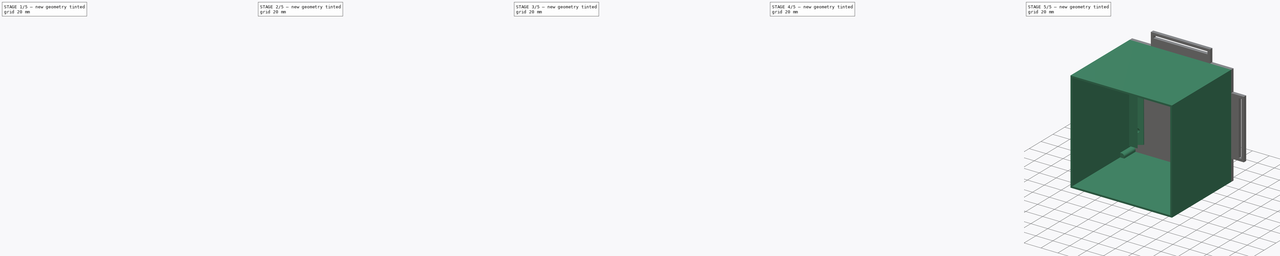
[diagram: build sequence overview — one tinted view per stage of 5, left to right]
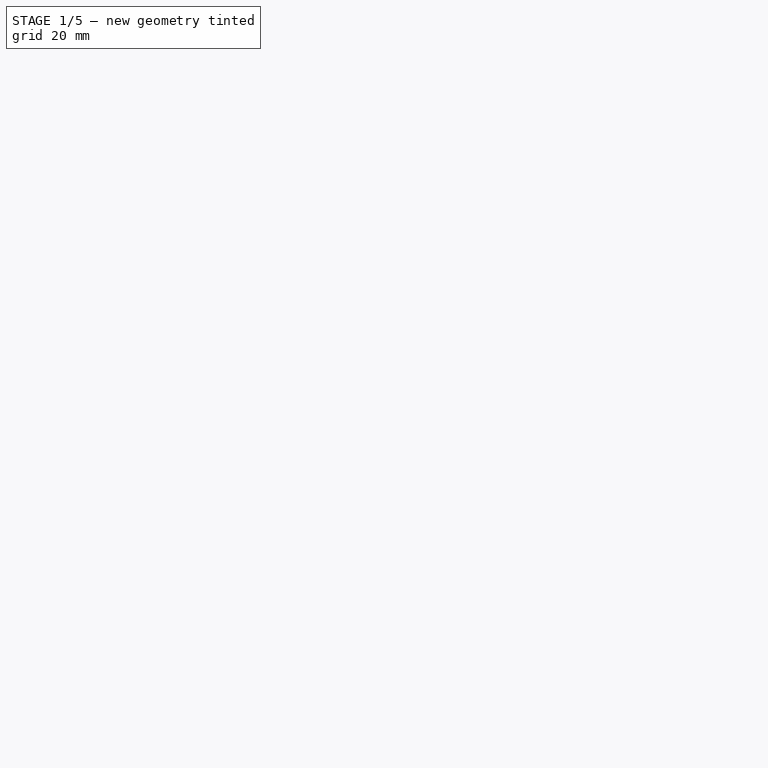
[diagram: stage 1 of 5 — iso view after this stage's code; geometry added in this stage tinted green]
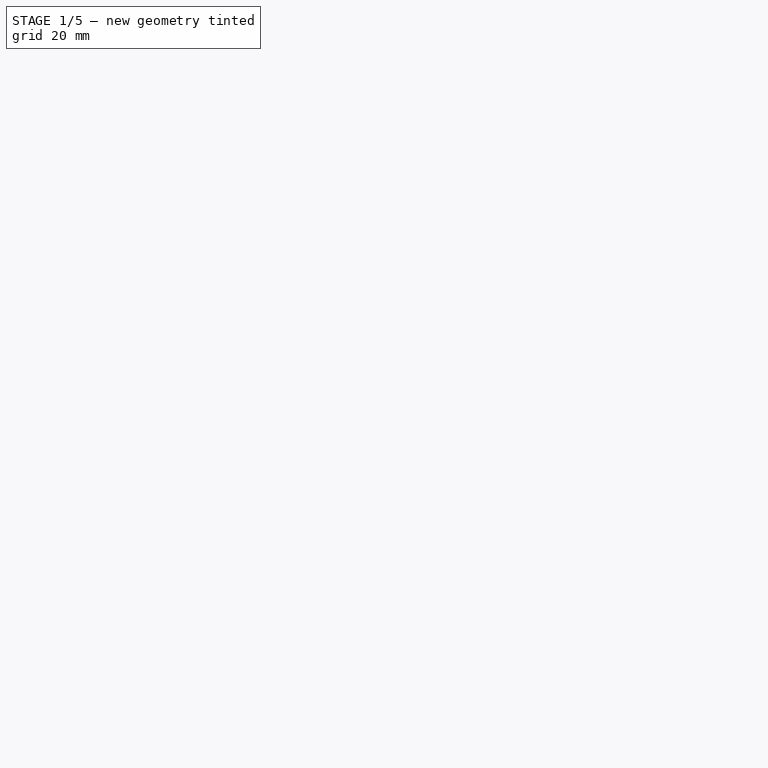
[diagram: stage 1 of 5 — front view after this stage's code; geometry added in this stage tinted green]
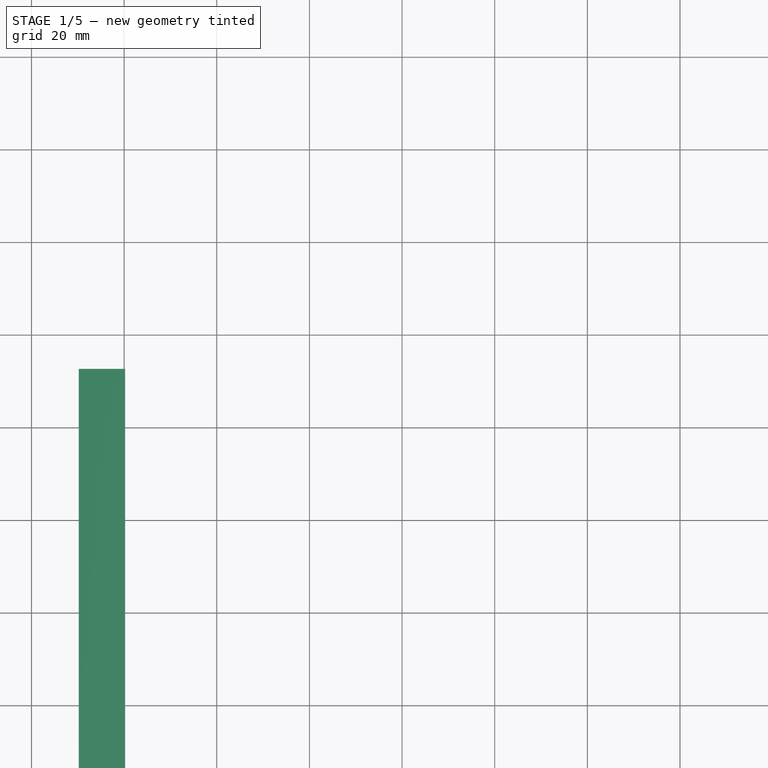
[diagram: stage 1 of 5 — top view after this stage's code; geometry added in this stage tinted green]
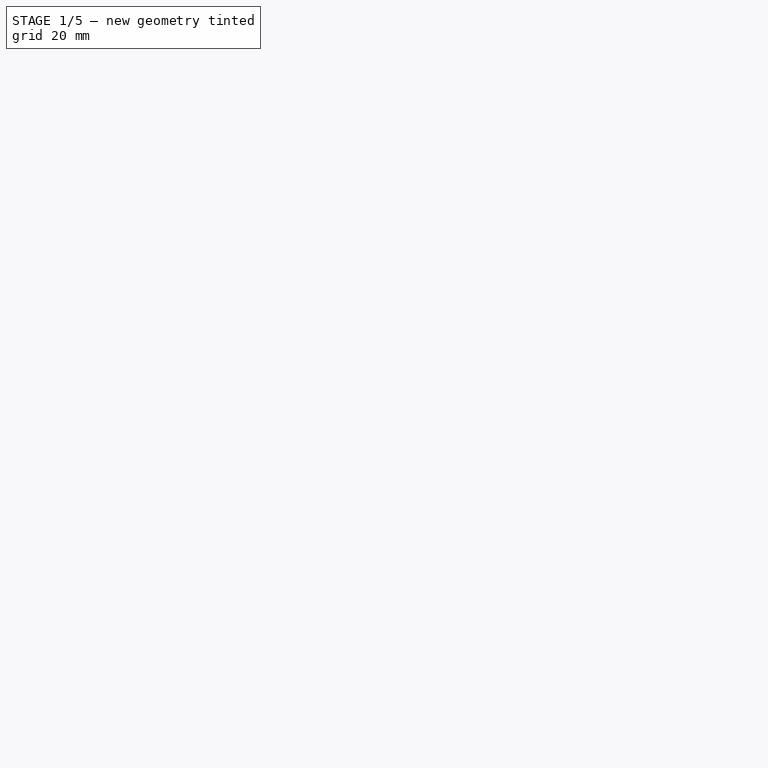
[diagram: stage 1 of 5 — right view after this stage's code; geometry added in this stage tinted green]
FCSTD DOCUMENT  (FreeCAD 0.18R16146 (Git))
Label: BaseIntento2
License: All rights reserved
LicenseURL: http://en.wikipedia.org/wiki/All_rights_reserved
objects: Part::Box×10, Sketcher::SketchObject×9, Part::FeaturePython×8, Part::Cylinder×8, Part::Cut×8, Part::Extrusion×4, Part::MultiFuse×2, PartDesign::FeatureBase×2, PartDesign::Pocket×2, PartDesign::Body×2, Part::Chamfer×2, Part::Compound×1, App::DocumentObjectGroup×1
note: 60 computed .brp shape members not serialized (recipe doc carries the construction recipe); baked Part::Feature solids carry a one-line shape summary decoded from their .brp

FEATURE [Part::Box] Box008  label="Cube008"
  AttacherType = Attacher::AttachEngine3D
  Height = 4
  Length = 70
  Placement = pos=(72,101,-708) rot=(1,0,0;1.5708rad)
  Width = 15
FEATURE [Part::Box] Box009  label="Cube009"
  AttacherType = Attacher::AttachEngine3D
  Height = 4
  Length = 64
  Placement = pos=(75,101,-699) rot=(1,0,0;1.5708rad)
  Width = 3.2
FEATURE [Part::Cut] Cut007
  Base = -> Box008
  Tool = -> Box009
FEATURE [Sketcher::SketchObject] Sketch007
  Placement = pos=(0,0,0) rot=(1,0,0;1.5708rad)
  sketch-geometry (8):
    g0: LineSegment StartX=0 StartY=0 StartZ=0 EndX=0 EndY=15 EndZ=0
    g1: LineSegment StartX=0 StartY=0 StartZ=0 EndX=10.2 EndY=0 EndZ=0
    g2: LineSegment StartX=0 StartY=15 StartZ=0 EndX=10.2 EndY=15 EndZ=0
    g3: LineSegment StartX=10.2 StartY=0 StartZ=0 EndX=17.3407 EndY=5 EndZ=0
    g4: LineSegment [constr] StartX=0 StartY=10 StartZ=0 EndX=10.2 EndY=10 EndZ=0
    g5: LineSegment [constr] StartX=10.2 StartY=10 StartZ=0 EndX=10.2 EndY=15 EndZ=0
    g6: LineSegment StartX=10.2 StartY=10 StartZ=0 EndX=17.3407 EndY=5 EndZ=0
    g7: LineSegment StartX=10.2 StartY=15 StartZ=0 EndX=10.2 EndY=10 EndZ=0
  constraints (21):
    c: Coincident(g0,g-1)
    c: Vertical(g0)
    c: DistanceY(g0,g0) = 15
    c: Horizontal(g1)
    c: DistanceX(g0,g1) = 10.2
    c: Coincident(g2,g0)
    c: Horizontal(g2)
    c: DistanceX(g0,g2) = 10.2
    c: Coincident(g3,g1)
    c: Angle(g3,g1) = 2.53073
    c: Coincident(g1,g0)
    c: Coincident(g5,g4)
    c: Coincident(g5,g2)
    c: Vertical(g5)
    c: Coincident(g6,g4)
    c: Coincident(g6,g3)
    c: DistanceY(g6,g2) = 5
    c: Angle(g4,g6) = 2.53073
    c: Perpendicular(g4,g0) = 1.5708
    c: Coincident(g7,g2)
    c: Coincident(g7,g6)
FEATURE [Sketcher::SketchObject] Sketch012
  MapMode = 5
  Placement = pos=(0,0,0) rot=(0,0.707107,0.707107;3.14159rad)
  sketch-geometry (6):
    g0: LineSegment StartX=-10.2 StartY=10 StartZ=0 EndX=-20.2 EndY=10 EndZ=0
    g1: LineSegment StartX=-20.2 StartY=-1 StartZ=0 EndX=-10.2 EndY=-1 EndZ=0
    g2: LineSegment StartX=-20.2 StartY=10 StartZ=0 EndX=-20.2 EndY=-1 EndZ=0
    g3: LineSegment StartX=-17.3407 StartY=5 StartZ=0 EndX=-10.2 EndY=10 EndZ=0
    g4: LineSegment StartX=-17.3407 StartY=5 StartZ=0 EndX=-10.2 EndY=0 EndZ=0
    g5: LineSegment StartX=-10.2 StartY=0 StartZ=0 EndX=-10.2 EndY=-1 EndZ=0
  constraints (12):
    c: Horizontal(g0)
    c: DistanceX(g0,g0) = 10
    c: Horizontal(g1)
    c: Coincident(g2,g0)
    c: Coincident(g2,g1)
    c: Vertical(g2)
    c: DistanceY(g1,g0) = 11
    c: Coincident(g3,g0)
    c: Coincident(g4,g3)
    c: Coincident(g5,g4)
    c: Coincident(g5,g1)
    c: Vertical(g5)
FEATURE [Part::Extrusion] Extrude006
  Base = -> Sketch012
  Dir = (0,1,-2e-16)
  DirMode = 2
  FaceMakerClass = Part::FaceMakerBullseye
  LengthFwd = 95
  LengthRev = 0
  Placement = pos=(11,0,0) rot=(0,0,1;0rad)
  Reversed = true
  Solid = true
  Symmetric = false
FEATURE [PartDesign::FeatureBase] BaseFeature002
  BaseFeature = -> Extrude006
FEATURE [Sketcher::SketchObject] Sketch013
  ExternalGeometry = -> [BaseFeature002]
  MapMode = 5
  Placement = pos=(20.2,0,0) rot=(0.57735,0.57735,0.57735;2.0944rad)
  Support = -> [BaseFeature002]
  sketch-geometry (7):
    g0: LineSegment [constr] StartX=-84.8 StartY=10 StartZ=0 EndX=-84.8 EndY=0 EndZ=0
    g1: LineSegment [constr] StartX=-84.8 StartY=10 StartZ=0 EndX=-74.8 EndY=10 EndZ=0
    g2: LineSegment [constr] StartX=-74.8 StartY=10 StartZ=0 EndX=-74.8 EndY=0 EndZ=0
    g3: LineSegment [constr] StartX=-84.8 StartY=0 StartZ=0 EndX=-74.8 EndY=0 EndZ=0
    g4: LineSegment [constr] StartX=-84.8 StartY=10 StartZ=0 EndX=-74.8 EndY=0 EndZ=0
    g5: LineSegment [constr] StartX=-74.8 StartY=10 StartZ=0 EndX=-84.8 EndY=0 EndZ=0
    g6: Circle CenterX=-79.8 CenterY=5 CenterZ=0 NormalX=0 NormalY=0 NormalZ=1 AngleXU=0 Radius=3
  constraints (19):
    c: PointOnObject(g0,g-5)
    c: PointOnObject(g0,g-1)
    c: Vertical(g0)
    c: DistanceX(g-5,g0) = 10.2
    c: Coincident(g1,g0)
    c: PointOnObject(g1,g-5)
    c: Coincident(g2,g1)
    c: PointOnObject(g2,g-1)
    c: Vertical(g2)
    c: Coincident(g3,g0)
    c: Coincident(g3,g2)
    c: DistanceX(g1,g1) = 10
    c: Coincident(g4,g0)
    c: Coincident(g4,g2)
    c: Coincident(g5,g1)
    c: Coincident(g5,g0)
    c: PointOnObject(g6,g4)
    c: PointOnObject(g6,g5)
    c: Radius(g6) = 3
FEATURE [PartDesign::Pocket] Pocket006
  BaseFeature = -> BaseFeature002
  Length = 10
  Length2 = 100
  Profile = -> Sketch013
  Type = 0
FEATURE [PartDesign::Body] Body002  label="RailPlacaDerecha"
  BaseFeature = -> Extrude006
  Group = -> [BaseFeature002,Sketch013,Pocket006]
  Origin = -> Origin002
  Placement = pos=(139.7,96,-720.5) rot=(-1,0,0;4.71239rad)
  Tip = -> Pocket006
FEATURE [Sketcher::SketchObject] Sketch017
  MapMode = 5
  Placement = pos=(0,0,0) rot=(0,0.707107,0.707107;3.14159rad)
  sketch-geometry (6):
    g0: LineSegment StartX=-10.2 StartY=10 StartZ=0 EndX=-20.2 EndY=10 EndZ=0
    g1: LineSegment StartX=-20.2 StartY=-1 StartZ=0 EndX=-10.2 EndY=-1 EndZ=0
    g2: LineSegment StartX=-20.2 StartY=10 StartZ=0 EndX=-20.2 EndY=-1 EndZ=0
    g3: LineSegment StartX=-17.3407 StartY=5 StartZ=0 EndX=-10.2 EndY=10 EndZ=0
    g4: LineSegment StartX=-17.3407 StartY=5 StartZ=0 EndX=-10.2 EndY=0 EndZ=0
    g5: LineSegment StartX=-10.2 StartY=0 StartZ=0 EndX=-10.2 EndY=-1 EndZ=0
  constraints (12):
    c: Horizontal(g0)
    c: DistanceX(g0,g0) = 10
    c: Horizontal(g1)
    c: Coincident(g2,g0)
    c: Coincident(g2,g1)
    c: Vertical(g2)
    c: DistanceY(g1,g0) = 11
    c: Coincident(g3,g0)
    c: Coincident(g4,g3)
    c: Coincident(g5,g4)
    c: Coincident(g5,g1)
    c: Vertical(g5)
FEATURE [Sketcher::SketchObject] Sketch014
  Placement = pos=(0,0,0) rot=(1,0,0;1.5708rad)
  sketch-geometry (8):
    g0: LineSegment StartX=0 StartY=0 StartZ=0 EndX=0 EndY=15 EndZ=0
    g1: LineSegment StartX=0 StartY=0 StartZ=0 EndX=10.2 EndY=0 EndZ=0
    g2: LineSegment StartX=0 StartY=15 StartZ=0 EndX=10.2 EndY=15 EndZ=0
    g3: LineSegment StartX=10.2 StartY=0 StartZ=0 EndX=17.3407 EndY=5 EndZ=0
    g4: LineSegment [constr] StartX=0 StartY=10 StartZ=0 EndX=10.2 EndY=10 EndZ=0
    g5: LineSegment [constr] StartX=10.2 StartY=10 StartZ=0 EndX=10.2 EndY=15 EndZ=0
    g6: LineSegment StartX=10.2 StartY=10 StartZ=0 EndX=17.3407 EndY=5 EndZ=0
    g7: LineSegment StartX=10.2 StartY=15 StartZ=0 EndX=10.2 EndY=10 EndZ=0
  constraints (21):
    c: Coincident(g0,g-1)
    c: Vertical(g0)
    c: DistanceY(g0,g0) = 15
    c: Horizontal(g1)
    c: DistanceX(g0,g1) = 10.2
    c: Coincident(g2,g0)
    c: Horizontal(g2)
    c: DistanceX(g0,g2) = 10.2
    c: Coincident(g3,g1)
    c: Angle(g3,g1) = 2.53073
    c: Coincident(g1,g0)
    c: Coincident(g5,g4)
    c: Coincident(g5,g2)
    c: Vertical(g5)
    c: Coincident(g6,g4)
    c: Coincident(g6,g3)
    c: DistanceY(g6,g2) = 5
    c: Angle(g4,g6) = 2.53073
    c: Perpendicular(g4,g0) = 1.5708
    c: Coincident(g7,g2)
    c: Coincident(g7,g6)
FEATURE [Part::Extrusion] Extrude008
  Base = -> Sketch017
  Dir = (0,1,-2e-16)
  DirMode = 2
  FaceMakerClass = Part::FaceMakerBullseye
  LengthFwd = 95
  LengthRev = 0
  Placement = pos=(11,0,0) rot=(0,0,1;0rad)
  Reversed = true
  Solid = true
  Symmetric = false
FEATURE [PartDesign::FeatureBase] BaseFeature003
  BaseFeature = -> Extrude008
FEATURE [Sketcher::SketchObject] Sketch018
  ExternalGeometry = -> [BaseFeature003]
  MapMode = 5
  Placement = pos=(20.2,0,0) rot=(0.57735,0.57735,0.57735;2.0944rad)
  Support = -> [BaseFeature003]
  sketch-geometry (7):
    g0: LineSegment [constr] StartX=-20.2 StartY=10 StartZ=0 EndX=-20.2 EndY=0 EndZ=0
    g1: LineSegment [constr] StartX=-20.2 StartY=10 StartZ=0 EndX=-10.2 EndY=10 EndZ=0
    g2: LineSegment [constr] StartX=-10.2 StartY=10 StartZ=0 EndX=-10.2 EndY=0 EndZ=0
    g3: LineSegment [constr] StartX=-10.2 StartY=0 StartZ=0 EndX=-20.2 EndY=0 EndZ=0
    g4: LineSegment [constr] StartX=-20.2 StartY=10 StartZ=0 EndX=-10.2 EndY=0 EndZ=0
    g5: LineSegment [constr] StartX=-20.2 StartY=0 StartZ=0 EndX=-10.2 EndY=10 EndZ=0
    g6: Circle CenterX=-15.2 CenterY=5 CenterZ=0 NormalX=0 NormalY=0 NormalZ=1 AngleXU=0 Radius=3
  constraints (19):
    c: PointOnObject(g0,g-5)
    c: PointOnObject(g0,g-1)
    c: Vertical(g0)
    c: Coincident(g1,g0)
    c: PointOnObject(g1,g-5)
    c: PointOnObject(g2,g-1)
    c: Vertical(g2)
    c: Coincident(g3,g2)
    c: Coincident(g3,g0)
    c: DistanceX(g1,g1) = 10
    c: Coincident(g2,g1)
    c: DistanceX(g1,g-5) = 10.2
    c: Coincident(g4,g0)
    c: Coincident(g4,g2)
    c: Coincident(g5,g0)
    c: Coincident(g5,g1)
    c: Radius(g6) = 3
    c: PointOnObject(g6,g4)
    c: PointOnObject(g6,g5)
FEATURE [PartDesign::Pocket] Pocket010
  BaseFeature = -> BaseFeature003
  Length = 10
  Length2 = 100
  Profile = -> Sketch018
  Type = 0
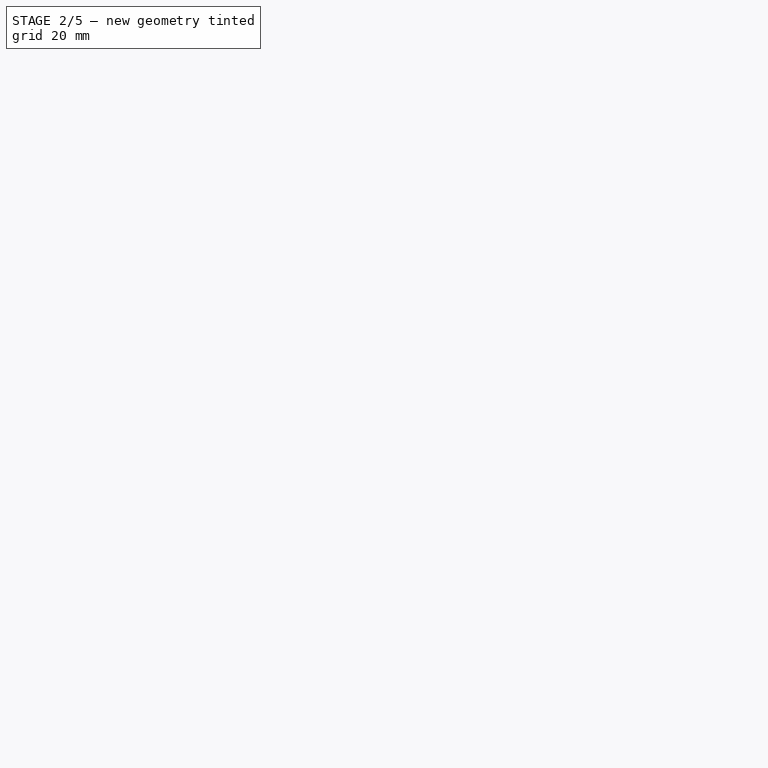
[diagram: stage 2 of 5 — iso view after this stage's code; geometry added in this stage tinted green]
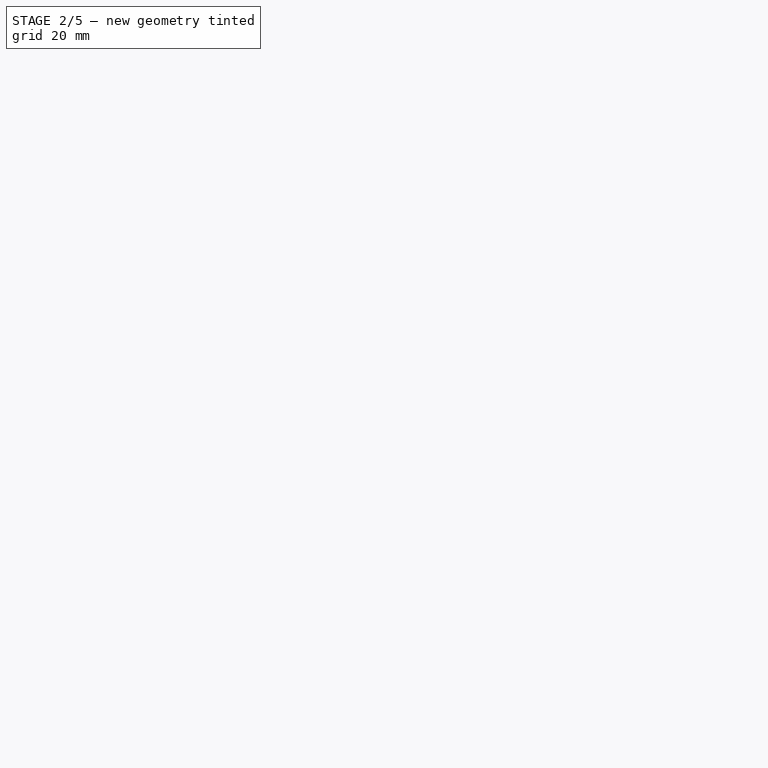
[diagram: stage 2 of 5 — front view after this stage's code; geometry added in this stage tinted green]
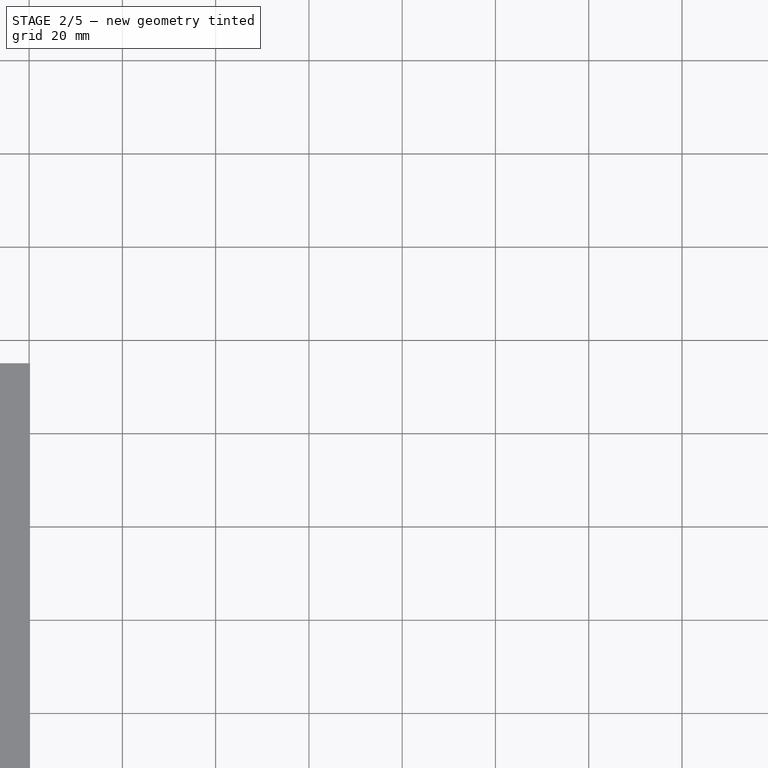
[diagram: stage 2 of 5 — top view after this stage's code; geometry added in this stage tinted green]
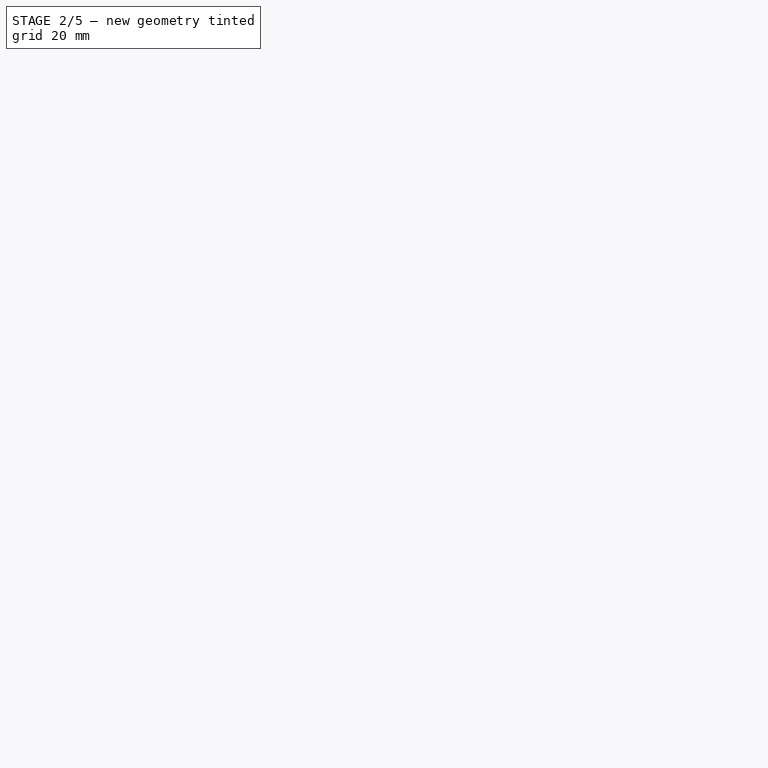
[diagram: stage 2 of 5 — right view after this stage's code; geometry added in this stage tinted green]
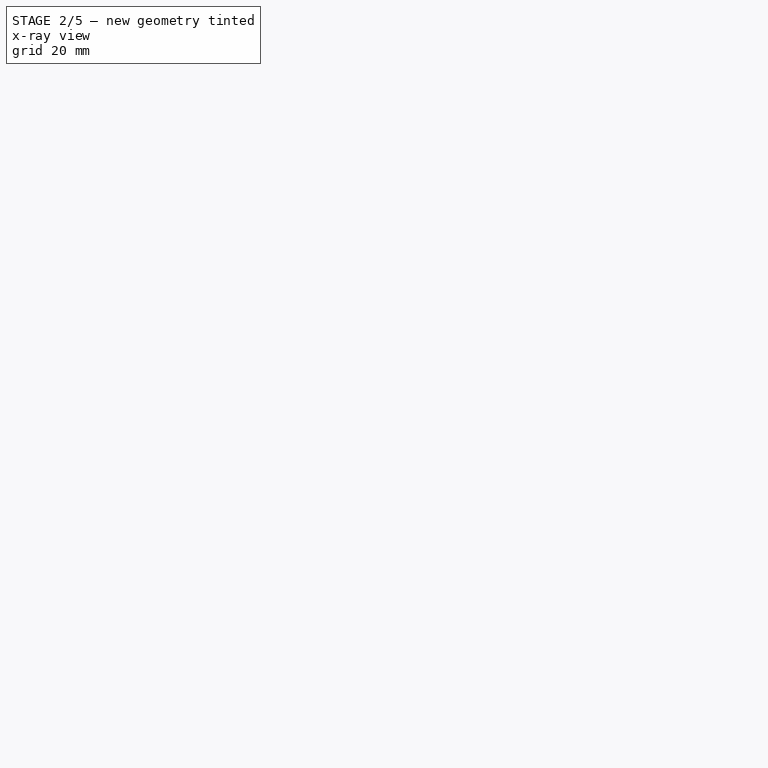
[diagram: stage 2 of 5 — x-ray composite at the iso view; earlier geometry ghosted, this stage's added geometry solid]
FEATURE [Part::Cylinder] Cylinder007
  Angle = 360
  AttacherType = Attacher::AttachEngine3D
  Height = 3
  Placement = pos=(163.1,101,-711.9) rot=(1,0,0;1.5708rad)
  Radius = 3
FEATURE [Part::Box] Box002  label="Cube002"
  AttacherType = Attacher::AttachEngine3D
  Height = 4
  Length = 15
  Placement = pos=(32,101,-803) rot=(1,0,0;1.5708rad)
  Width = 70
FEATURE [Part::Box] Box003  label="Cube003"
  AttacherType = Attacher::AttachEngine3D
  Height = 4
  Length = 3.2
  Placement = pos=(35,101,-800) rot=(1,0,0;1.5708rad)
  Width = 64
FEATURE [Part::Cut] Cut004
  Base = -> Box002
  Tool = -> Box003
FEATURE [Part::Box] Box004  label="Cube004"
  AttacherType = Attacher::AttachEngine3D
  Height = 4
  Length = 70
  Placement = pos=(72,101,-843) rot=(1,0,0;1.5708rad)
  Width = 15
FEATURE [Part::Box] Box005  label="Cube005"
  AttacherType = Attacher::AttachEngine3D
  Height = 3.2
  Length = 64
  Placement = pos=(75,97,-840) rot=(0,0,1;0rad)
  Width = 4
FEATURE [Part::Cut] Cut005
  Base = -> Box004
  Tool = -> Box005
FEATURE [Part::Box] Box006  label="Cube006"
  AttacherType = Attacher::AttachEngine3D
  Height = 4
  Length = 15
  Placement = pos=(167,101,-803) rot=(1,0,0;1.5708rad)
  Width = 70
FEATURE [Part::Box] Box007  label="Cube007"
  AttacherType = Attacher::AttachEngine3D
  Height = 4
  Length = 3.2
  Placement = pos=(176,101,-800) rot=(1,0,0;1.5708rad)
  Width = 64
FEATURE [Part::Cut] Cut006
  Base = -> Box006
  Tool = -> Box007
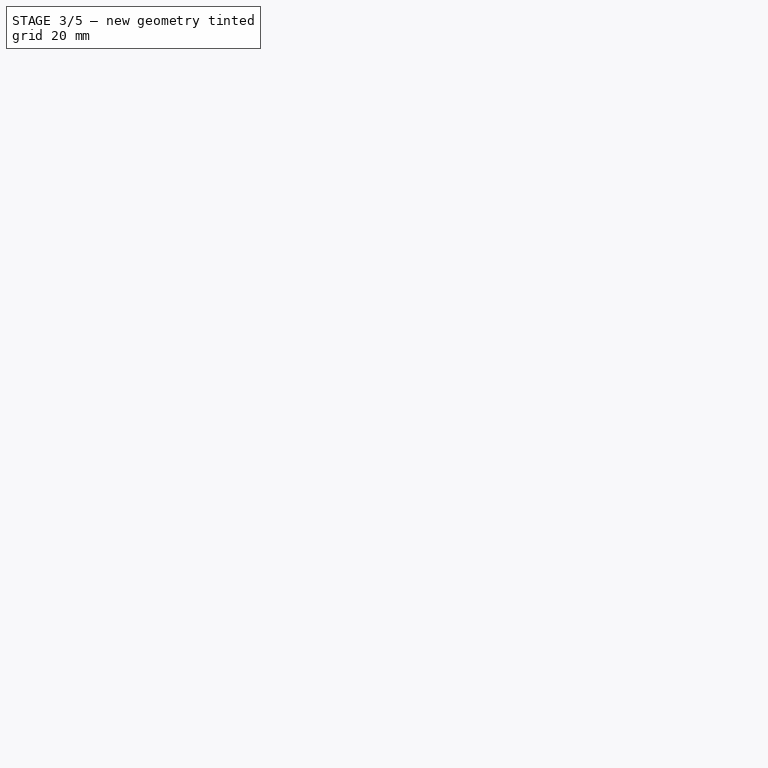
[diagram: stage 3 of 5 — iso view after this stage's code; geometry added in this stage tinted green]
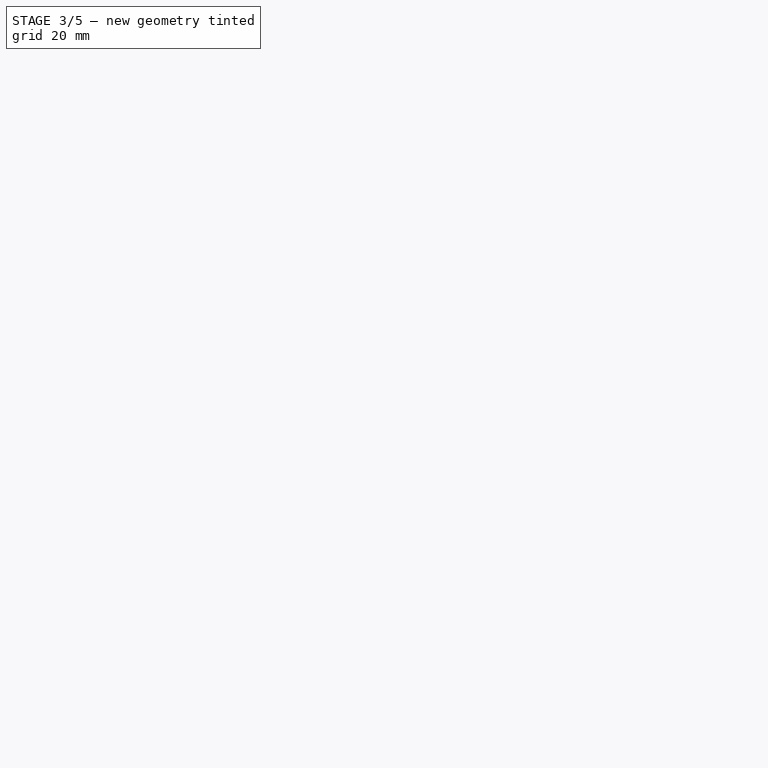
[diagram: stage 3 of 5 — front view after this stage's code; geometry added in this stage tinted green]
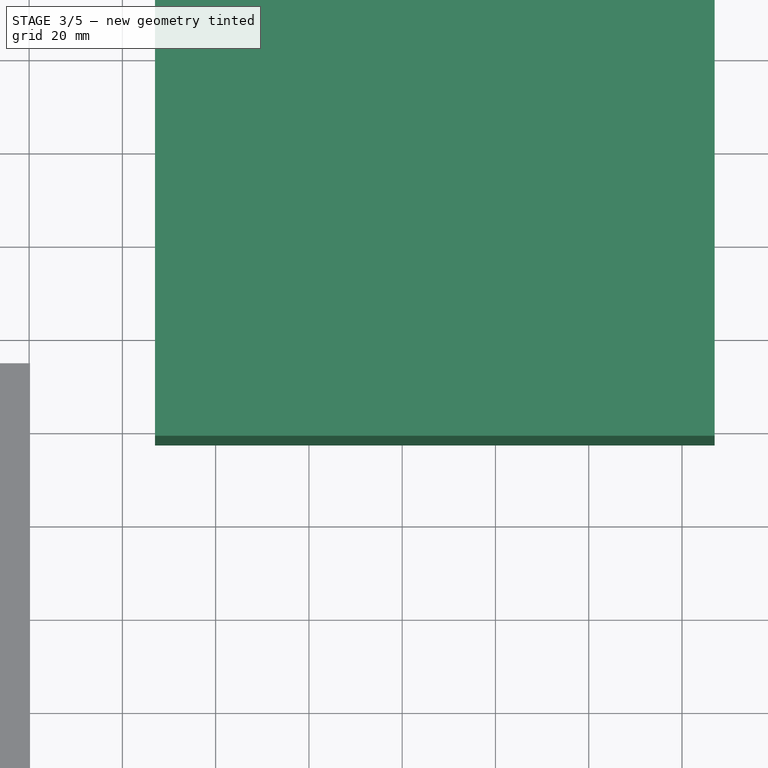
[diagram: stage 3 of 5 — top view after this stage's code; geometry added in this stage tinted green]
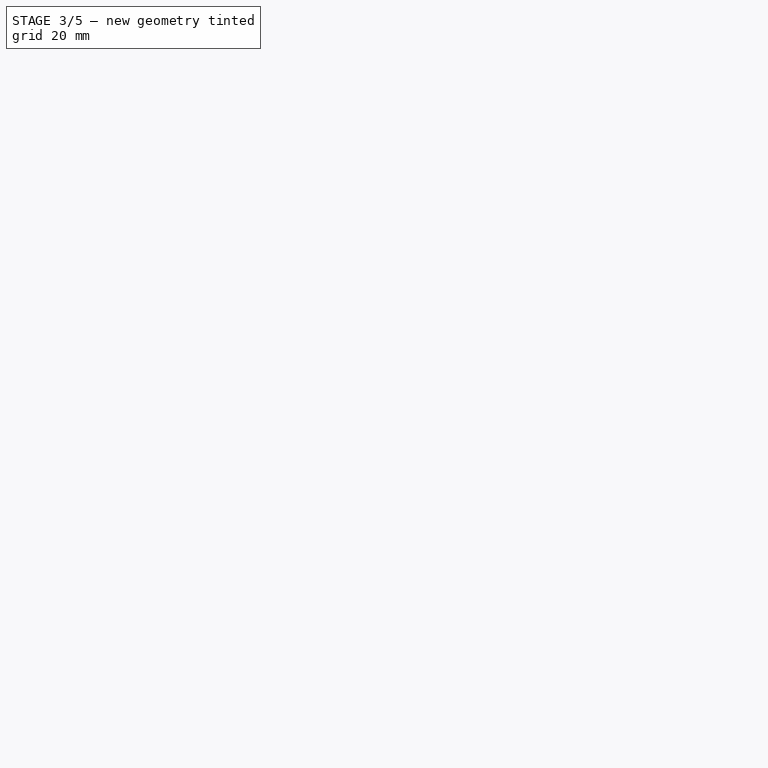
[diagram: stage 3 of 5 — right view after this stage's code; geometry added in this stage tinted green]
FEATURE [Sketcher::SketchObject] Sketch001
  MapMode = 5
  Placement = pos=(59,-4,-816) rot=(0,0.707107,0.707107;3.14159rad)
  sketch-geometry (4):
    g0: LineSegment StartX=12 StartY=108 StartZ=0 EndX=12 EndY=-12 EndZ=0
    g1: LineSegment StartX=-108 StartY=-12 StartZ=0 EndX=12 EndY=-12 EndZ=0
    g2: LineSegment StartX=-108 StartY=108 StartZ=0 EndX=-108 EndY=-12 EndZ=0
    g3: LineSegment StartX=-108 StartY=108 StartZ=0 EndX=12 EndY=108 EndZ=0
  constraints (12):
    c: Distance(g-1,g0) = 12
    c: Vertical(g0)
    c: Coincident(g1,g0)
    c: Horizontal(g1)
    c: Horizontal(g3)
    c: Vertical(g2)
    c: Coincident(g2,g3)
    c: Coincident(g2,g1)
    c: Coincident(g3,g0)
    c: Distance(g-1,g1) = 12
    c: DistanceY(g0,g0) = 120
    c: DistanceX(g2,g0) = 120
FEATURE [Part::Extrusion] Extrude001
  Base = -> Sketch001
  Dir = (0,1,2e-16)
  DirMode = 2
  FaceMakerClass = Part::FaceMakerBullseye
  LengthFwd = 100
  LengthRev = 0
  Placement = pos=(0,1,0) rot=(0,0,1;0rad)
  Solid = true
  Symmetric = false
FEATURE [Sketcher::SketchObject] Sketch002
  MapMode = 5
  Placement = pos=(0,-3,-7e-16) rot=(1,0,0;1.5708rad)
  Support = -> [Compound]
FEATURE [Part::Cylinder] Cylinder
  Angle = 360
  AttacherType = Attacher::AttachEngine3D
  Height = 20
  Placement = pos=(50.9,101,-711.9) rot=(1,0,0;1.5708rad)
  Radius = 1.9
FEATURE [Part::Box] Box  label="Cube"
  AttacherType = Attacher::AttachEngine3D
  Height = 4
  Length = 120
  Placement = pos=(47,101,-828) rot=(1,0,0;1.5708rad)
  Width = 120
FEATURE [Part::Cylinder] Cylinder001
  Angle = 360
  AttacherType = Attacher::AttachEngine3D
  Height = 20
  Placement = pos=(50.9,101,-824.1) rot=(1,0,0;1.5708rad)
  Radius = 1.9
FEATURE [Part::Cylinder] Cylinder002
  Angle = 360
  AttacherType = Attacher::AttachEngine3D
  Height = 20
  Placement = pos=(163.1,101,-824.1) rot=(1,0,0;1.5708rad)
  Radius = 1.9
FEATURE [Part::Cylinder] Cylinder003
  Angle = 360
  AttacherType = Attacher::AttachEngine3D
  Height = 21
  Placement = pos=(163.1,101,-711.9) rot=(1,0,0;1.5708rad)
  Radius = 1.9
FEATURE [Part::Cylinder] Cylinder004
  Angle = 360
  AttacherType = Attacher::AttachEngine3D
  Height = 3
  Placement = pos=(50.8,101,-711.9) rot=(1,0,0;1.5708rad)
  Radius = 3
FEATURE [Part::Cylinder] Cylinder005
  Angle = 360
  AttacherType = Attacher::AttachEngine3D
  Height = 3
  Placement = pos=(50.85,101,-824.1) rot=(1,0,0;1.5708rad)
  Radius = 3
FEATURE [Part::Cylinder] Cylinder006
  Angle = 360
  AttacherType = Attacher::AttachEngine3D
  Height = 3
  Placement = pos=(163.1,101,-824.1) rot=(1,0,0;1.5708rad)
  Radius = 3
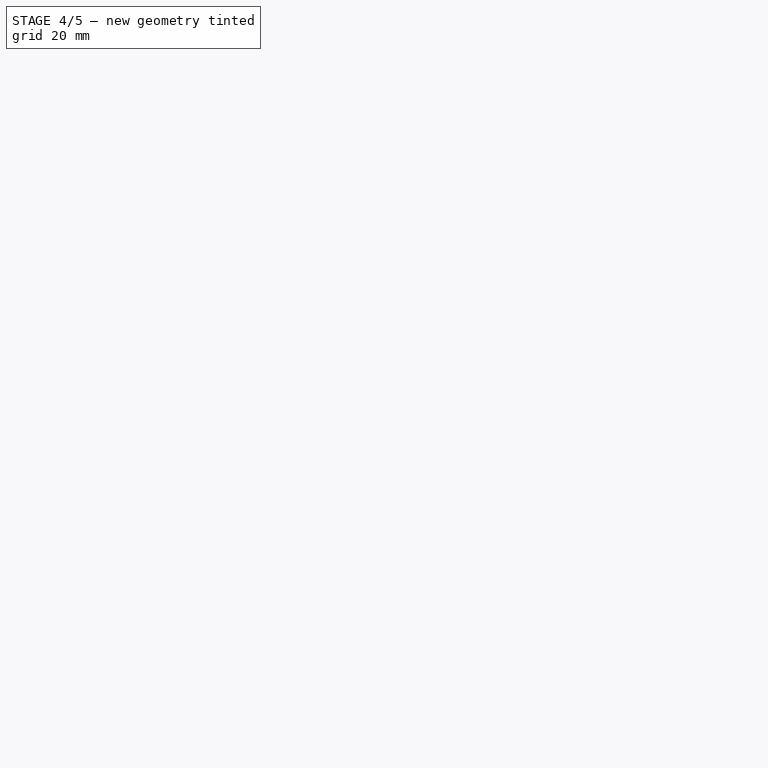
[diagram: stage 4 of 5 — iso view after this stage's code; geometry added in this stage tinted green]
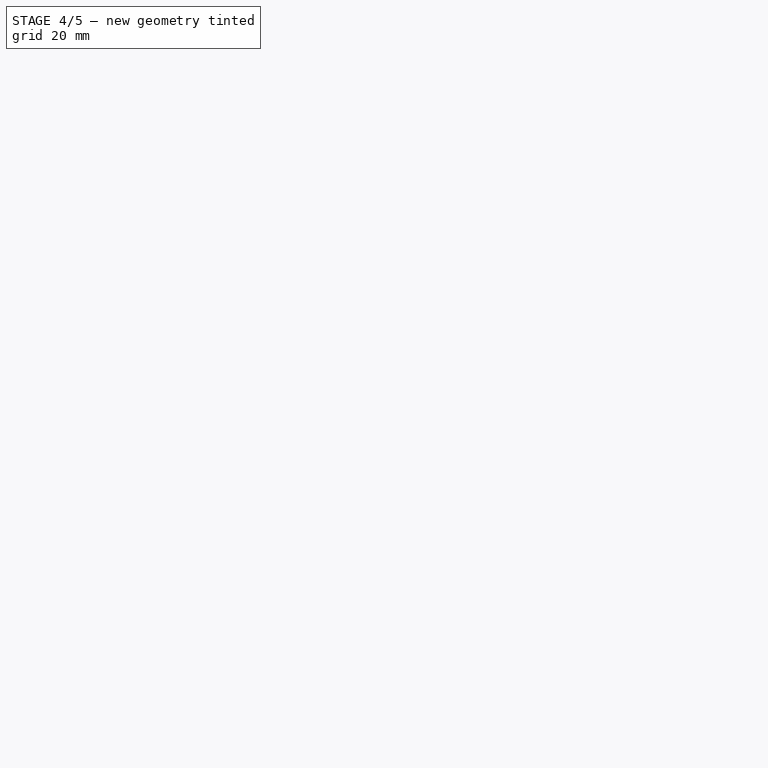
[diagram: stage 4 of 5 — front view after this stage's code; geometry added in this stage tinted green]
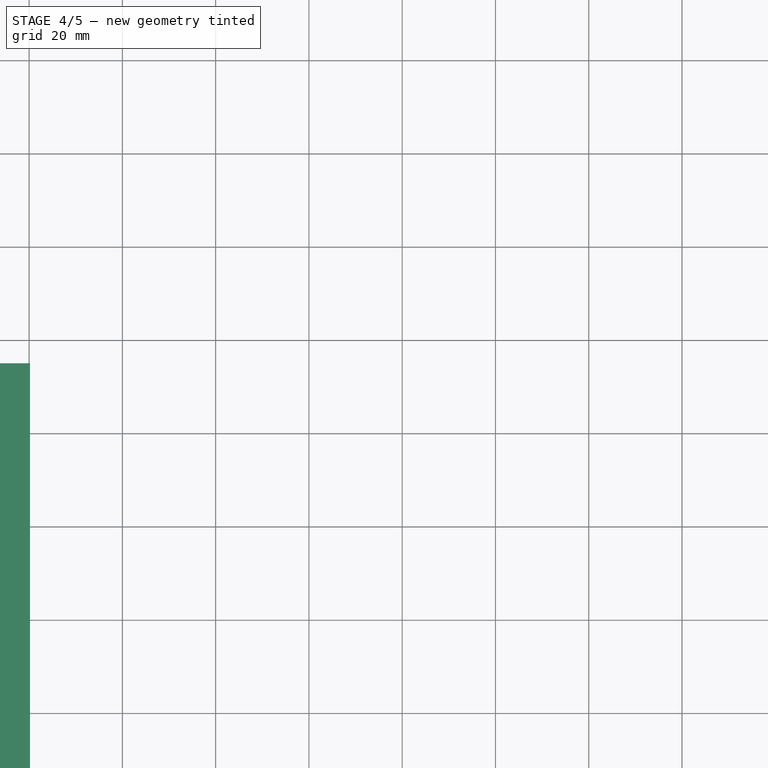
[diagram: stage 4 of 5 — top view after this stage's code; geometry added in this stage tinted green]
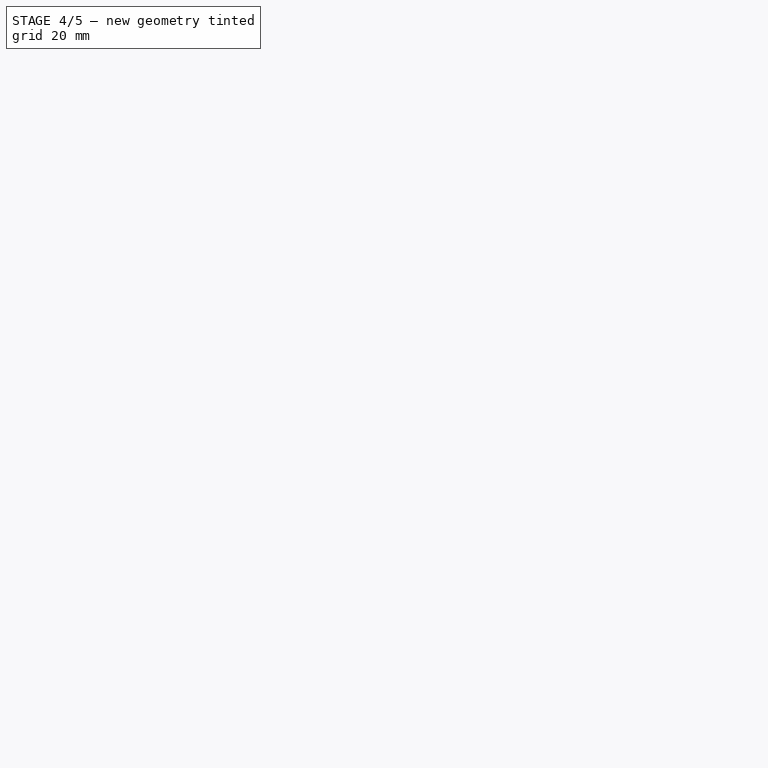
[diagram: stage 4 of 5 — right view after this stage's code; geometry added in this stage tinted green]
FEATURE [Sketcher::SketchObject] Sketch
  ExternalGeometry = -> [Sketch001]
  MapMode = 5
  Placement = pos=(0,-3,-9e-16) rot=(1,0,0;1.5708rad)
  Support = -> [Extrude001]
  sketch-geometry (28):
    g0: LineSegment StartX=53.9 StartY=-710 StartZ=0 EndX=160.1 EndY=-710 EndZ=0
    g1: LineSegment [constr] StartX=53.9 StartY=-710 StartZ=0 EndX=49 EndY=-710 EndZ=0
    g2: LineSegment [constr] StartX=49 StartY=-710 StartZ=0 EndX=49 EndY=-714.9 EndZ=0
    g3: Circle [constr] CenterX=50.9 CenterY=-711.9 CenterZ=0 NormalX=0 NormalY=0 NormalZ=1 AngleXU=0 Radius=1.9
    g4: LineSegment StartX=49 StartY=-714.9 StartZ=0 EndX=50.9 EndY=-714.9 EndZ=0
    g5: LineSegment StartX=53.9 StartY=-710 StartZ=0 EndX=53.9 EndY=-711.9 EndZ=0
    g6: ArcOfCircle CenterX=50.9 CenterY=-711.9 CenterZ=0 NormalX=0 NormalY=0 NormalZ=1 AngleXU=0 Radius=3 StartAngle=4.71239 EndAngle=6.28319
    g7: LineSegment StartX=160.1 StartY=-710 StartZ=0 EndX=160.1 EndY=-711.9 EndZ=0
    g8: LineSegment StartX=165 StartY=-714.9 StartZ=0 EndX=163.1 EndY=-714.9 EndZ=0
    g9: ArcOfCircle CenterX=163.1 CenterY=-711.9 CenterZ=0 NormalX=0 NormalY=0 NormalZ=1 AngleXU=0 Radius=3 StartAngle=3.14159 EndAngle=4.71239
    g10: LineSegment StartX=165 StartY=-714.9 StartZ=0 EndX=165 EndY=-821.1 EndZ=0
    g11: LineSegment [constr] StartX=160.1 StartY=-710 StartZ=0 EndX=165 EndY=-710 EndZ=0
    g12: LineSegment [constr] StartX=165 StartY=-714.9 StartZ=0 EndX=165 EndY=-710 EndZ=0
    g13: Circle [constr] CenterX=163.1 CenterY=-711.9 CenterZ=0 NormalX=0 NormalY=0 NormalZ=1 AngleXU=0 Radius=1.9
    g14: Circle [constr] CenterX=163.1 CenterY=-824.1 CenterZ=0 NormalX=0 NormalY=0 NormalZ=1 AngleXU=0 Radius=1.9
    g15: LineSegment StartX=165 StartY=-821.1 StartZ=0 EndX=163.1 EndY=-821.1 EndZ=0
    g16: LineSegment StartX=160.1 StartY=-826 StartZ=0 EndX=160.1 EndY=-824.1 EndZ=0
    g17: ArcOfCircle CenterX=163.1 CenterY=-824.1 CenterZ=0 NormalX=0 NormalY=0 NormalZ=1 AngleXU=0 Radius=3 StartAngle=1.5708 EndAngle=3.14159
    g18: LineSegment StartX=160.1 StartY=-826 StartZ=0 EndX=53.9 EndY=-826 EndZ=0
    g19: LineSegment [constr] StartX=165 StartY=-821.1 StartZ=0 EndX=165 EndY=-826 EndZ=0
    g20: LineSegment [constr] StartX=160.1 StartY=-826 StartZ=0 EndX=165 EndY=-826 EndZ=0
    g21: Circle [constr] CenterX=50.9 CenterY=-824.1 CenterZ=0 NormalX=0 NormalY=0 NormalZ=1 AngleXU=0 Radius=1.9
    g22: LineSegment StartX=49 StartY=-821.1 StartZ=0 EndX=50.9 EndY=-821.1 EndZ=0
    g23: LineSegment StartX=53.9 StartY=-826 StartZ=0 EndX=53.9 EndY=-824.1 EndZ=0
    g24: ArcOfCircle CenterX=50.9 CenterY=-824.1 CenterZ=0 NormalX=0 NormalY=0 NormalZ=1 AngleXU=0 Radius=3 StartAngle=1.431e-13 EndAngle=1.5708
    g25: LineSegment StartX=49 StartY=-821.1 StartZ=0 EndX=49 EndY=-714.9 EndZ=0
    g26: LineSegment [constr] StartX=49 StartY=-821.1 StartZ=0 EndX=49 EndY=-826 EndZ=0
    g27: LineSegment [constr] StartX=53.9 StartY=-826 StartZ=0 EndX=49 EndY=-826 EndZ=0
  constraints (80):
    c: Horizontal(g0)
    c: Coincident(g1,g0)
    c: Horizontal(g1)
    c: Coincident(g2,g1)
    c: Coincident(g2,g25)
    c: Vertical(g2)
    c: Distance(g1,g-3) = 2
    c: Distance(g1,g-4) = 2
    c: Radius(g3) = 1.9
    c: Tangent(g3,g1)
    c: Tangent(g2,g3)
    c: Coincident(g4,g25)
    c: Horizontal(g4)
    c: Coincident(g5,g0)
    c: Vertical(g5)
    c: Coincident(g6,g3)
    c: Coincident(g6,g4)
    c: Coincident(g6,g5)
    c: Radius(g6) = 3
    c: DistanceX(g25,g4) = 1.9
    c: DistanceY(g5,g0) = 1.9
    c: Vertical(g7)
    c: Horizontal(g8)
    c: Coincident(g9,g7)
    c: Coincident(g9,g8)
    c: Radius(g9) = 3
    c: Coincident(g0,g7)
    c: Coincident(g10,g8)
    c: Coincident(g11,g0)
    c: Horizontal(g11)
    c: Coincident(g12,g8)
    c: Vertical(g12)
    c: Coincident(g12,g11)
    c: Coincident(g13,g9)
    c: Radius(g13) = 1.9
    c: Tangent(g13,g11)
    c: DistanceX(g8,g8) = 1.9
    c: Tangent(g13,g12)
    c: DistanceY(g7,g0) = 1.9
    c: Distance(g8,g-6) = 2
    c: Radius(g14) = 1.9
    c: Horizontal(g15)
    c: Vertical(g16)
    c: Coincident(g17,g14)
    c: Coincident(g17,g16)
    c: Coincident(g17,g15)
    c: Radius(g17) = 3
    c: Coincident(g10,g15)
    c: Coincident(g18,g16)
    c: Coincident(g19,g10)
    c: Vertical(g19)
    c: Tangent(g19,g14)
    c: Coincident(g20,g16)
    c: Coincident(g20,g19)
    c: Horizontal(g20)
    c: DistanceY(g10,g8) = 106.2
    c: Tangent(g14,g20)
    c: DistanceX(g15,g10) = 1.9
    c: DistanceY(g16,g16) = 1.9
    c: Radius(g21) = 1.9
    c: Horizontal(g22)
    c: Vertical(g23)
    c: Coincident(g24,g21)
    c: Coincident(g24,g22)
    c: Coincident(g24,g23)
    c: Radius(g24) = 3
    c: Coincident(g25,g22)
    c: Coincident(g18,g23)
    c: DistanceX(g22,g22) = 1.9
    c: DistanceY(g18,g23) = 1.9
    c: Distance(g19,g-6) = 2
    c: Coincident(g26,g22)
    c: Vertical(g26)
    c: Tangent(g26,g21)
    c: Coincident(g27,g18)
    c: Coincident(g27,g26)
    c: Horizontal(g27)
    c: Tangent(g21,g27)
    c: Distance(g18,g-5) = 2
    c: Distance(g22,g-4) = 2
FEATURE [Part::Extrusion] Extrude
  Base = -> Sketch
  Dir = (0,-1,-2e-16)
  DirMode = 2
  FaceMakerClass = Part::FaceMakerBullseye
  LengthFwd = 100
  LengthRev = 0
  Reversed = true
  Solid = true
  Symmetric = false
FEATURE [Part::FeaturePython] XOR  # WARN: FeaturePython — macro-defined, semantics opaque (R4)
  Objects = -> [Extrude,Extrude001]
  Tolerance = 0
FEATURE [Part::Compound] Compound
  Links = -> [XOR]
FEATURE [Part::FeaturePython] XOR001  # WARN: FeaturePython — macro-defined, semantics opaque (R4)
  Objects = -> [Compound,Cylinder,Box]
  Tolerance = 0
FEATURE [Part::FeaturePython] XOR002  # WARN: FeaturePython — macro-defined, semantics opaque (R4)
  Objects = -> [Cylinder001,XOR001]
  Tolerance = 0
FEATURE [Part::FeaturePython] XOR003  # WARN: FeaturePython — macro-defined, semantics opaque (R4)
  Objects = -> [XOR002,Cylinder002]
  Tolerance = 0
FEATURE [Part::FeaturePython] XOR004  # WARN: FeaturePython — macro-defined, semantics opaque (R4)
  Objects = -> [Cylinder003,XOR003]
  Tolerance = 0
FEATURE [Part::FeaturePython] Slice  # WARN: FeaturePython — macro-defined, semantics opaque (R4)
  Base = -> XOR004
  Mode = 1
  Tolerance = 0
  Tools = -> [Cylinder004]
FEATURE [Part::FeaturePython] Slice_child0  label="Slice.0"  # WARN: FeaturePython — macro-defined, semantics opaque (R4)
  Base = -> Slice
  FilterType = 1
  Invert = false
  OverrideMaxVal = 0
  WindowFrom = 80
  WindowTo = 100
  items = 0
FEATURE [Part::Cut] Cut
  Base = -> Slice_child0
  Tool = -> Cylinder005
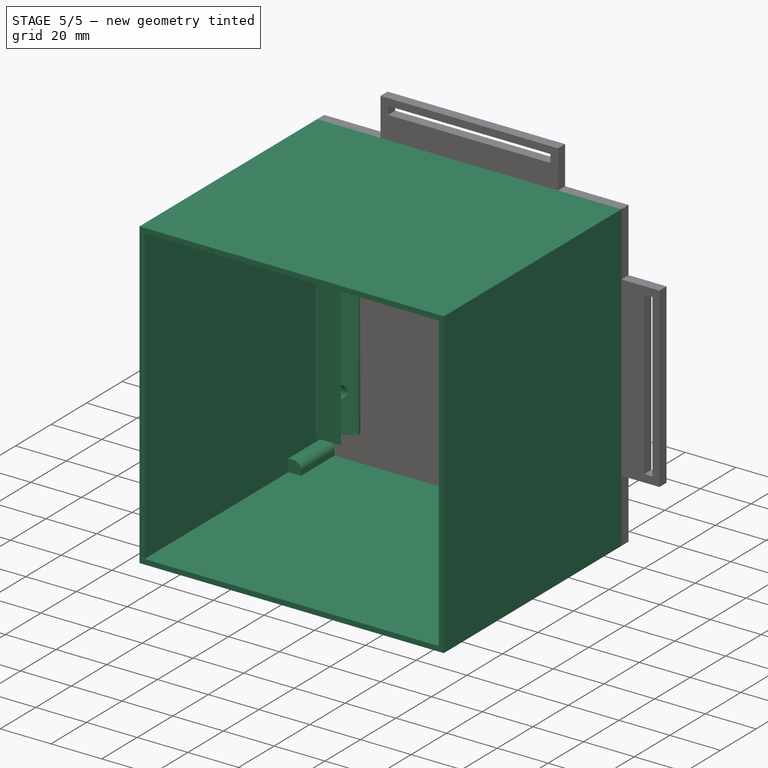
[diagram: stage 5 of 5 — iso view after this stage's code; geometry added in this stage tinted green]
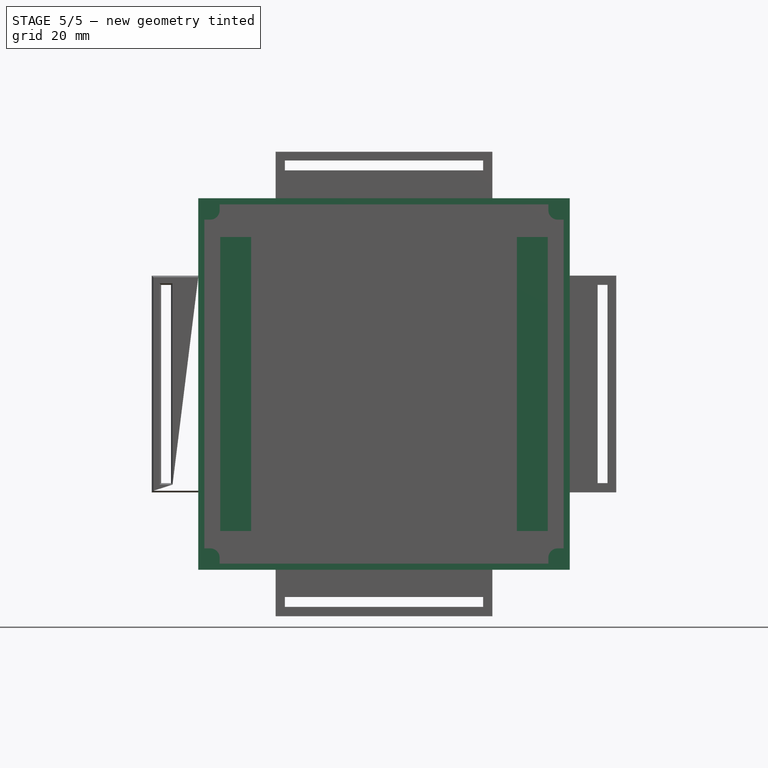
[diagram: stage 5 of 5 — front view after this stage's code; geometry added in this stage tinted green]
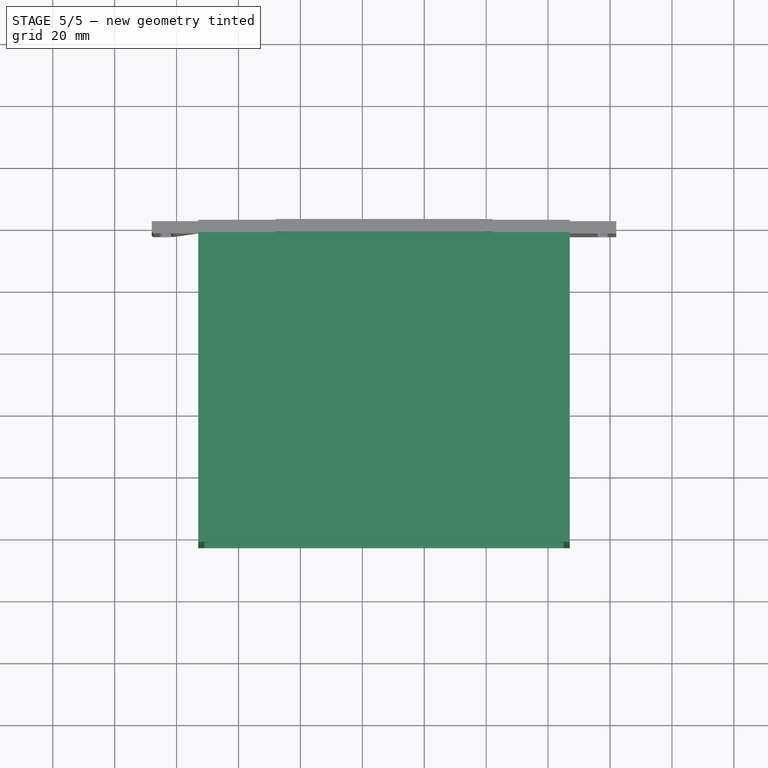
[diagram: stage 5 of 5 — top view after this stage's code; geometry added in this stage tinted green]
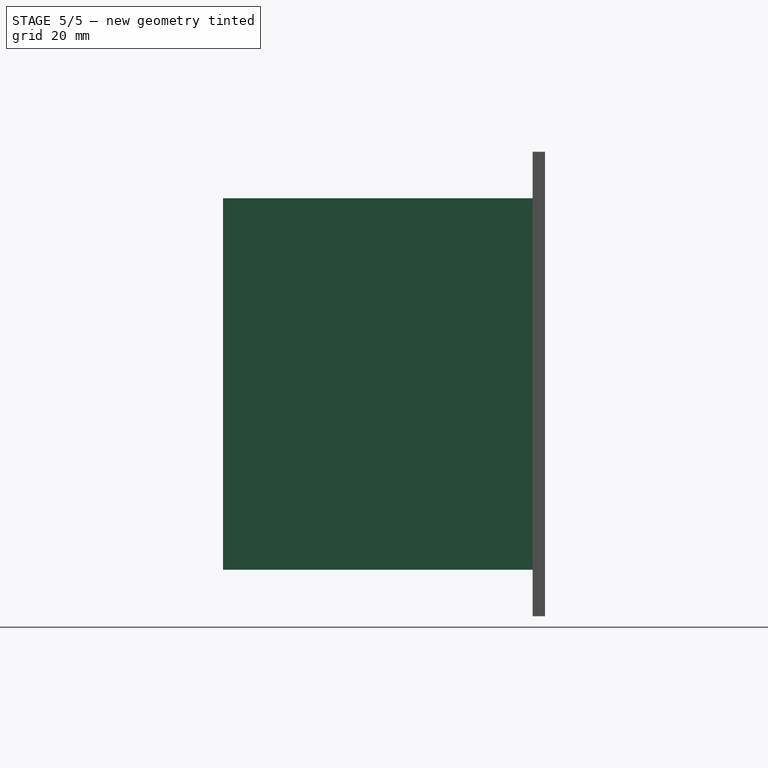
[diagram: stage 5 of 5 — right view after this stage's code; geometry added in this stage tinted green]
FEATURE [Part::FeaturePython] Slice_child2  label="Slice.2"  # WARN: FeaturePython — macro-defined, semantics opaque (R4)
  Base = -> Slice
  FilterType = 1
  Invert = false
  OverrideMaxVal = 0
  WindowFrom = 80
  WindowTo = 100
  items = 2
FEATURE [Part::Cut] Cut001
  Base = -> Cut
  Tool = -> Cylinder006
FEATURE [Part::Cut] Cut002
  Base = -> Cut001
  Tool = -> Cylinder007
FEATURE [Part::Box] Box001  label="Cube001"
  AttacherType = Attacher::AttachEngine3D
  Height = 84
  Length = 116
  Placement = pos=(49,78,-826) rot=(1,0,0;1.5708rad)
  Width = 116
FEATURE [Part::Cut] Cut003
  Base = -> Slice_child2
  Tool = -> Box001
FEATURE [Part::MultiFuse] Fusion
  Shapes = -> [Cut002,Cut004,Cut005,Cut006,Cut007]
FEATURE [PartDesign::Body] Body003  label="RailPlacaIzquierda"
  BaseFeature = -> Extrude008
  Group = -> [BaseFeature003,Sketch018,Pocket010]
  Origin = -> Origin003
  Placement = pos=(74.3,96,-815.5) rot=(0,0.707107,-0.707107;3.14159rad)
  Tip = -> Pocket010
FEATURE [Part::MultiFuse] Fusion001
  Shapes = -> [Fusion,Body002,Body003]
FEATURE [App::DocumentObjectGroup] GrExplode_Slice  label="Exploded Slice"
  Group = -> [Cut003,Fusion001]
FEATURE [Part::Chamfer] Chamfer
  Base = -> Fusion001
  Edges = 4 edges r=0.5: [Edge62,Edge63,Edge64,Edge65]
FEATURE [Part::Chamfer] Chamfer001
  Base = -> Chamfer
  Edges = 3 edges r=0.5: [Edge5,Edge6,Edge7]
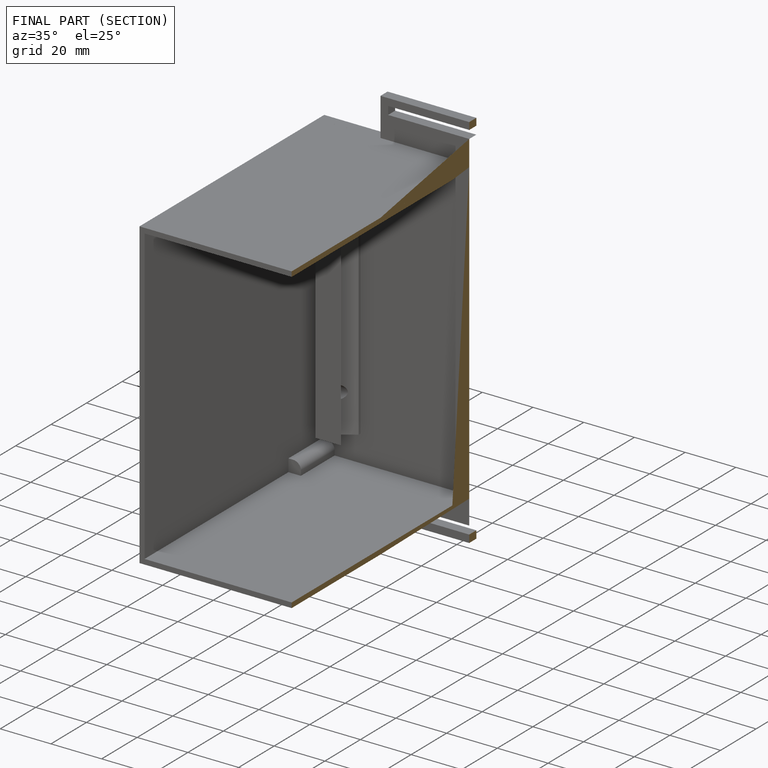
[diagram: finished part — half-section view (interior)]
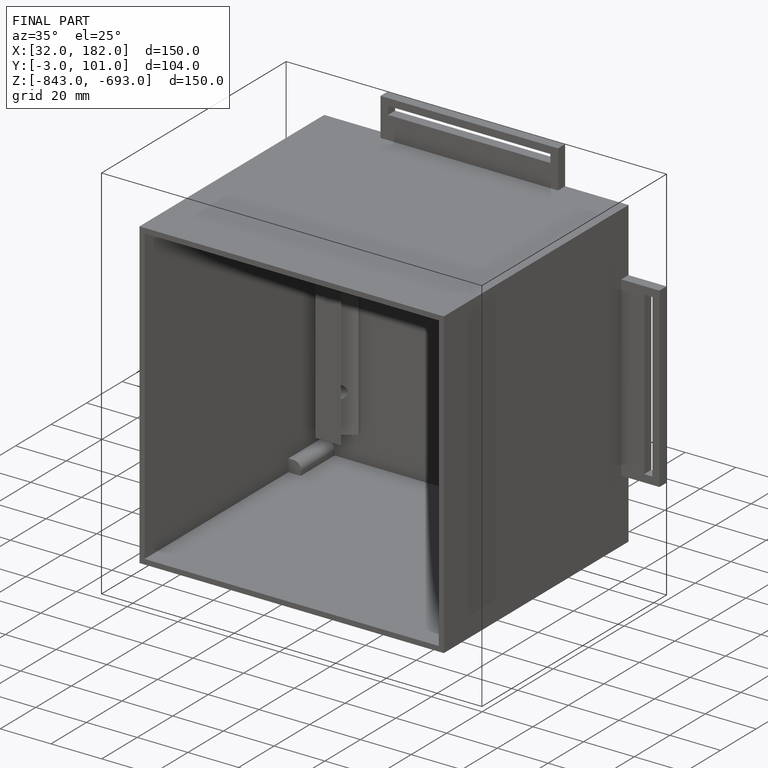
[diagram: finished part — iso view with bounding-box wireframe]
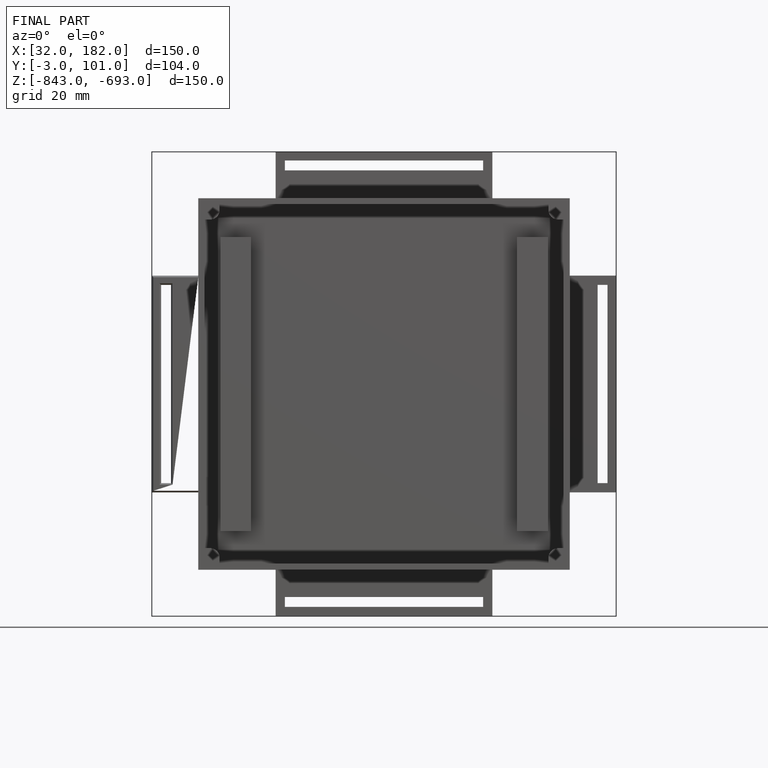
[diagram: finished part — front view with bounding-box wireframe]
